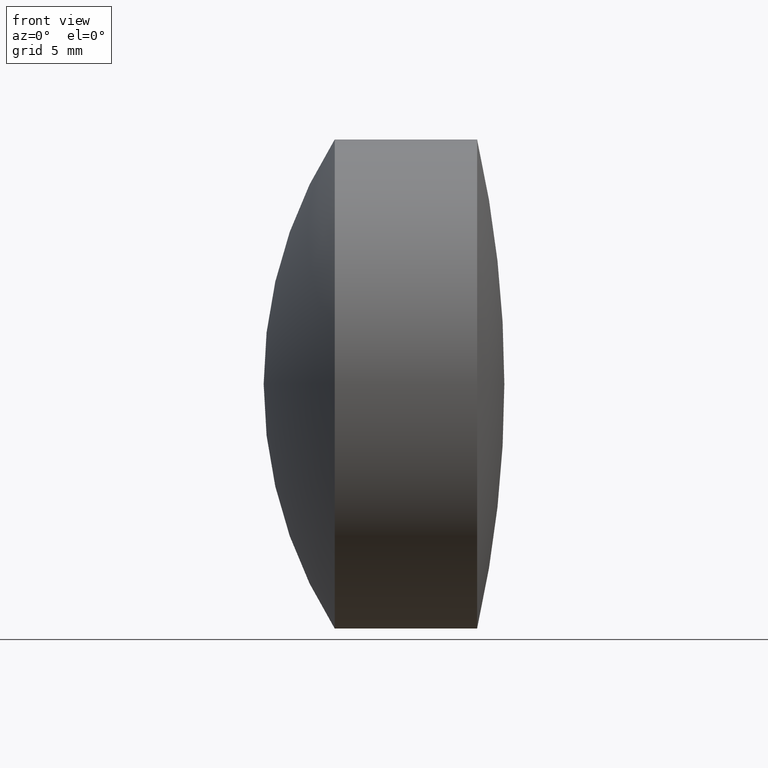
[diagram: clean part render]
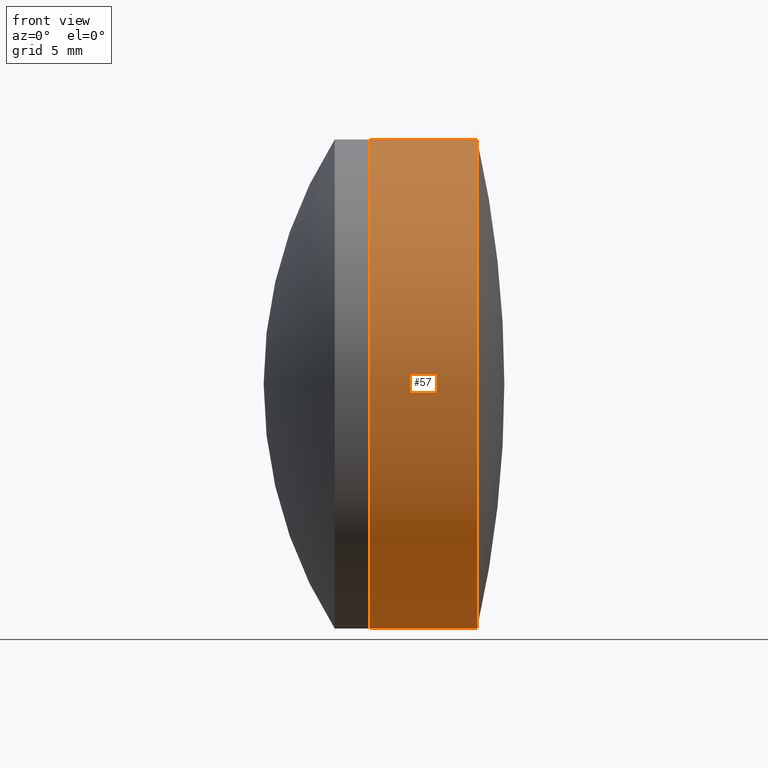
[diagram: same view with one face highlighted and labeled with its STEP entity id]
A machine part, front view. The second image highlights one B-rep face of the part: STEP entity #57.
In plain terms, the highlighted cylindrical surface (partial cylindrical patch) has radius 12.7 mm, axis along (-1, -0, -0).
Its self-contained STEP definition (entity closure, byte-faithful):
#2 = VERTEX_POINT ( 'NONE', #145 ) ;
#15 = VERTEX_POINT ( 'NONE', #150 ) ;
#17 = CYLINDRICAL_SURFACE ( 'NONE', #46, 12.70000000000000300 ) ;
#32 = DIRECTION ( 'NONE',  ( -1.000000000000000000, -0.0000000000000000000, -0.0000000000000000000 ) ) ;
#34 = VERTEX_POINT ( 'NONE', #165 ) ;
#35 = CARTESIAN_POINT ( 'NONE',  ( 226.6753194837398000, 0.0000000000000000000, 0.0000000000000000000 ) ) ;
#36 = DIRECTION ( 'NONE',  ( 0.0000000000000000000, 0.0000000000000000000, 1.000000000000000000 ) ) ;
#39 = CARTESIAN_POINT ( 'NONE',  ( 232.2808349263005700, 0.0000000000000000000, 0.0000000000000000000 ) ) ;
#44 = ORIENTED_EDGE ( 'NONE', *, *, #314, .T. ) ;
#46 = AXIS2_PLACEMENT_3D ( 'NONE', #222, #294, #36 ) ;
#48 = DIRECTION ( 'NONE',  ( -1.000000000000000000, -0.0000000000000000000, -0.0000000000000000000 ) ) ;
#57 = ADVANCED_FACE ( 'NONE', ( #264 ), #17, .T. ) ;
#85 = EDGE_CURVE ( 'NONE', #265, #2, #237, .T. ) ;
#94 = VECTOR ( 'NONE', #48, 1000.000000000000000 ) ;
#100 = ORIENTED_EDGE ( 'NONE', *, *, #173, .F. ) ;
#103 = AXIS2_PLACEMENT_3D ( 'NONE', #39, #32, #230 ) ;
#111 = CARTESIAN_POINT ( 'NONE',  ( -0.5519199926577972300, 0.0000000000000000000, 12.70000000000000300 ) ) ;
#116 = CIRCLE ( 'NONE', #197, 12.70000000000000100 ) ;
#145 = CARTESIAN_POINT ( 'NONE',  ( 226.6753194837398000, 1.555301434917138200E-015, -12.70000000000000300 ) ) ;
#150 = CARTESIAN_POINT ( 'NONE',  ( 226.6753194837398000, 0.0000000000000000000, 12.69999999999999900 ) ) ;
#164 = CARTESIAN_POINT ( 'NONE',  ( -0.5519199926577972300, 1.555301434917138800E-015, -12.70000000000000300 ) ) ;
#165 = CARTESIAN_POINT ( 'NONE',  ( 232.2808349263005700, 0.0000000000000000000, 12.70000000000000300 ) ) ;
#169 = CIRCLE ( 'NONE', #103, 12.70000000000000300 ) ;
#173 = EDGE_CURVE ( 'NONE', #2, #15, #116, .T. ) ;
#197 = AXIS2_PLACEMENT_3D ( 'NONE', #35, #198, #276 ) ;
#198 = DIRECTION ( 'NONE',  ( -1.000000000000000000, -0.0000000000000000000, -0.0000000000000000000 ) ) ;
#206 = CARTESIAN_POINT ( 'NONE',  ( 232.2808349263005700, 1.555301434917138800E-015, -12.70000000000000300 ) ) ;
#215 = VECTOR ( 'NONE', #228, 1000.000000000000000 ) ;
#222 = CARTESIAN_POINT ( 'NONE',  ( -0.5519199926577972300, 0.0000000000000000000, 0.0000000000000000000 ) ) ;
#228 = DIRECTION ( 'NONE',  ( -1.000000000000000000, -0.0000000000000000000, -0.0000000000000000000 ) ) ;
#230 = DIRECTION ( 'NONE',  ( 0.0000000000000000000, 0.0000000000000000000, 1.000000000000000000 ) ) ;
#231 = EDGE_CURVE ( 'NONE', #265, #34, #169, .T. ) ;
#234 = LINE ( 'NONE', #111, #215 ) ;
#237 = LINE ( 'NONE', #164, #94 ) ;
#264 = FACE_OUTER_BOUND ( 'NONE', #293, .T. ) ;
#265 = VERTEX_POINT ( 'NONE', #206 ) ;
#270 = ORIENTED_EDGE ( 'NONE', *, *, #231, .T. ) ;
#276 = DIRECTION ( 'NONE',  ( 0.0000000000000000000, 0.0000000000000000000, 1.000000000000000000 ) ) ;
#293 = EDGE_LOOP ( 'NONE', ( #307, #270, #44, #100 ) ) ;
#294 = DIRECTION ( 'NONE',  ( -1.000000000000000000, -0.0000000000000000000, -0.0000000000000000000 ) ) ;
#307 = ORIENTED_EDGE ( 'NONE', *, *, #85, .F. ) ;
#314 = EDGE_CURVE ( 'NONE', #34, #15, #234, .T. ) ;